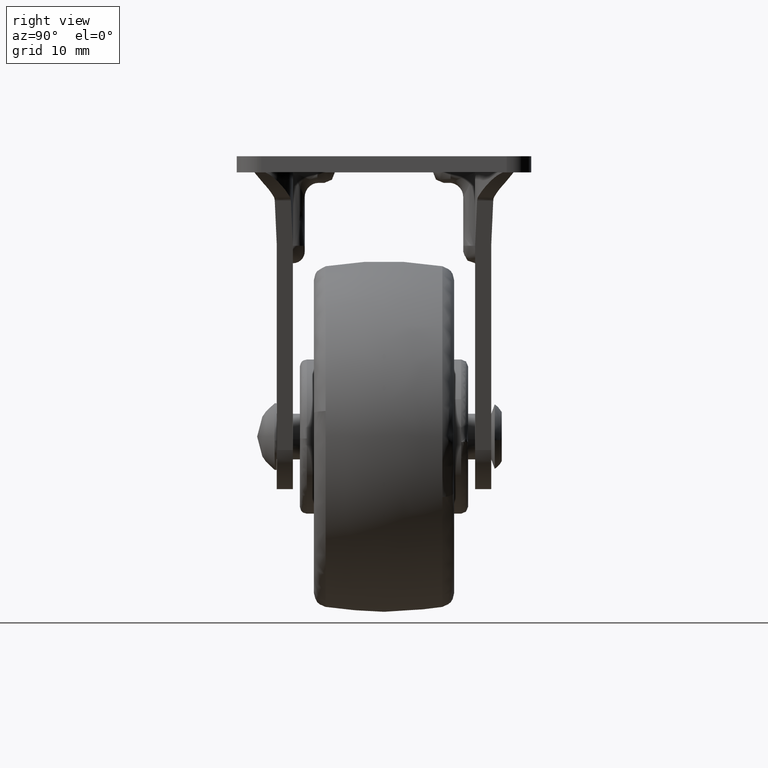
[diagram: clean part render]
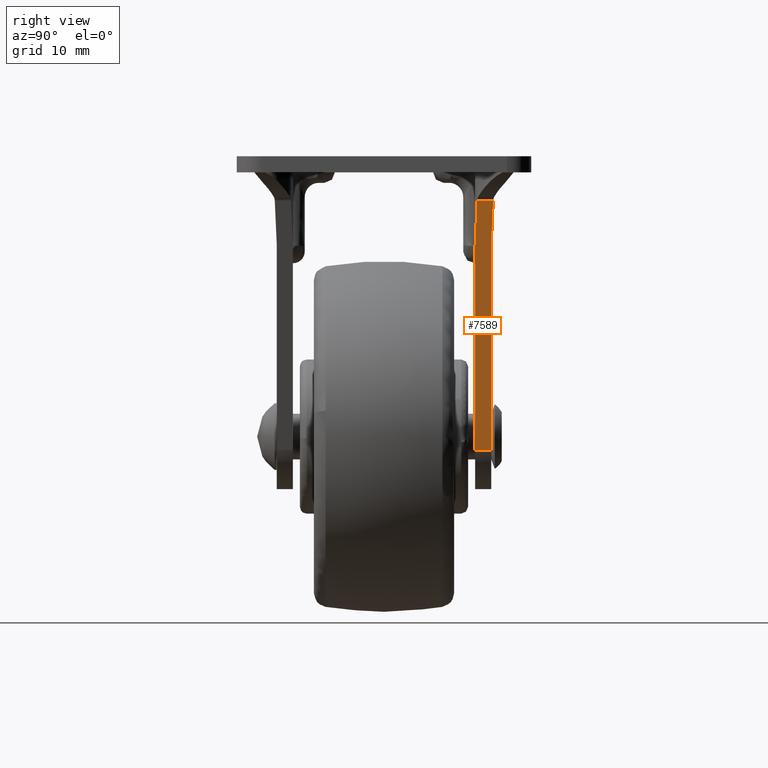
[diagram: same view with one face highlighted and labeled with its STEP entity id]
A machine part, right view. The second image highlights one B-rep face of the part: STEP entity #7589.
In plain terms, the highlighted face is a freeform B-spline surface patch.
Its self-contained STEP definition (entity closure, byte-faithful):
#7414=CARTESIAN_POINT('',(16.664416999999901,13.285160018610220,33.667254999999997));
#7415=VERTEX_POINT('',#7414);
#7427=CARTESIAN_POINT('',(16.664416999999901,15.585163018610100,33.667254999999997));
#7428=VERTEX_POINT('',#7427);
#7429=CARTESIAN_POINT('',(16.664416999999901,15.585163018610100,33.667254999999997));
#7430=CARTESIAN_POINT('',(16.664416999999901,13.285160018610220,33.667254999999997));
#7431=QUASI_UNIFORM_CURVE('',1,(#7429,#7430),.UNSPECIFIED.,.F.,.U.);
#7432=EDGE_CURVE('',#7428,#7415,#7431,.T.);
#7532=CARTESIAN_POINT('',(6.780362862922171,12.870871112230970,-3.695575508511415));
#7533=CARTESIAN_POINT('',(17.134638201973509,12.870871112230970,35.444743753824511));
#7534=CARTESIAN_POINT('',(6.780362862922171,15.714291975718600,-3.695575508511415));
#7535=CARTESIAN_POINT('',(17.134638201973509,15.714291975718600,35.444743753824511));
#7536=B_SPLINE_SURFACE_WITH_KNOTS('',1,1,((#7532,#7534),(#7533,#7535)),.UNSPECIFIED.,.F.,.F.,.U.,(2,2),(2,2),(0.0,40.486733750136857),(0.0,2.843420863487632),.UNSPECIFIED.);
#7537=ORIENTED_EDGE('',*,*,#7432,.T.);
#7538=CARTESIAN_POINT('',(15.0,13.0,27.375572517890149));
#7539=VERTEX_POINT('',#7538);
#7540=CARTESIAN_POINT('',(15.0,13.0,27.375572517890149));
#7541=CARTESIAN_POINT('',(15.856636343567276,13.0,30.613753740721670));
#7542=CARTESIAN_POINT('',(16.664416999999901,13.285160018610220,33.667254999999997));
#7550=(BOUNDED_CURVE()B_SPLINE_CURVE(2,(#7540,#7541,#7542),.UNSPECIFIED.,.F.,.U.)CURVE()GEOMETRIC_REPRESENTATION_ITEM()QUASI_UNIFORM_CURVE()RATIONAL_B_SPLINE_CURVE((1.0,0.985638878159239,1.0))REPRESENTATION_ITEM(''));
#7551=EDGE_CURVE('',#7539,#7415,#7550,.T.);
#7552=ORIENTED_EDGE('',*,*,#7551,.F.);
#7553=CARTESIAN_POINT('',(7.250582215677090,13.0,-1.918086946336670));
#7554=VERTEX_POINT('',#7553);
#7555=CARTESIAN_POINT('',(15.0,13.0,27.375572517890149));
#7556=CARTESIAN_POINT('',(7.250582215677090,13.0,-1.918086946336670));
#7557=QUASI_UNIFORM_CURVE('',1,(#7555,#7556),.UNSPECIFIED.,.F.,.U.);
#7558=EDGE_CURVE('',#7539,#7554,#7557,.T.);
#7559=ORIENTED_EDGE('',*,*,#7558,.T.);
#7560=CARTESIAN_POINT('',(7.250582215677090,15.300003000000100,-1.918086946336670));
#7561=VERTEX_POINT('',#7560);
#7562=CARTESIAN_POINT('',(7.250582215677090,15.300003000000100,-1.918086946336670));
#7563=CARTESIAN_POINT('',(7.250582215677090,13.0,-1.918086946336670));
#7564=QUASI_UNIFORM_CURVE('',1,(#7562,#7563),.UNSPECIFIED.,.F.,.U.);
#7565=EDGE_CURVE('',#7561,#7554,#7564,.T.);
#7566=ORIENTED_EDGE('',*,*,#7565,.F.);
#7567=CARTESIAN_POINT('',(14.999996509341599,15.300003000000100,27.375559322810449));
#7568=VERTEX_POINT('',#7567);
#7569=CARTESIAN_POINT('',(7.250582215677090,15.300003000000100,-1.918086946336670));
#7570=CARTESIAN_POINT('',(14.999996509341599,15.300003000000100,27.375559322810449));
#7571=QUASI_UNIFORM_CURVE('',1,(#7569,#7570),.UNSPECIFIED.,.F.,.U.);
#7572=EDGE_CURVE('',#7561,#7568,#7571,.T.);
#7573=ORIENTED_EDGE('',*,*,#7572,.T.);
#7574=CARTESIAN_POINT('',(16.664416999999901,15.585163018610100,33.667254999999997));
#7575=CARTESIAN_POINT('',(15.856634649468552,15.300002401954925,30.613747336838916));
#7576=CARTESIAN_POINT('',(14.999996509341599,15.300003000000100,27.375559322810449));
#7584=(BOUNDED_CURVE()B_SPLINE_CURVE(2,(#7574,#7575,#7576),.UNSPECIFIED.,.F.,.U.)CURVE()GEOMETRIC_REPRESENTATION_ITEM()QUASI_UNIFORM_CURVE()RATIONAL_B_SPLINE_CURVE((1.0,0.985638819213538,1.0))REPRESENTATION_ITEM(''));
#7585=EDGE_CURVE('',#7428,#7568,#7584,.T.);
#7586=ORIENTED_EDGE('',*,*,#7585,.F.);
#7587=EDGE_LOOP('',(#7537,#7552,#7559,#7566,#7573,#7586));
#7588=FACE_OUTER_BOUND('',#7587,.T.);
#7589=ADVANCED_FACE('',(#7588),#7536,.F.);